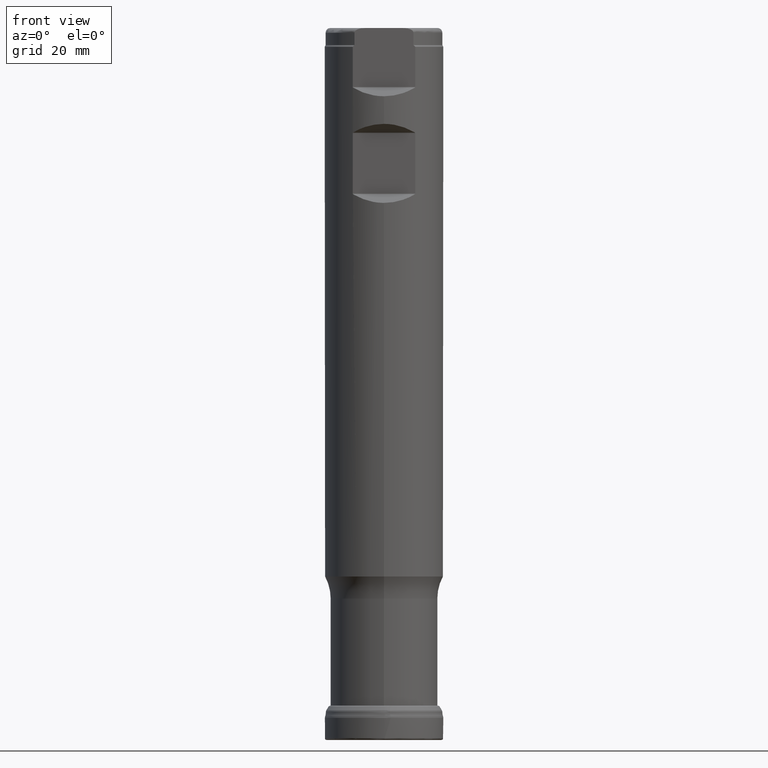
[diagram: clean part render]
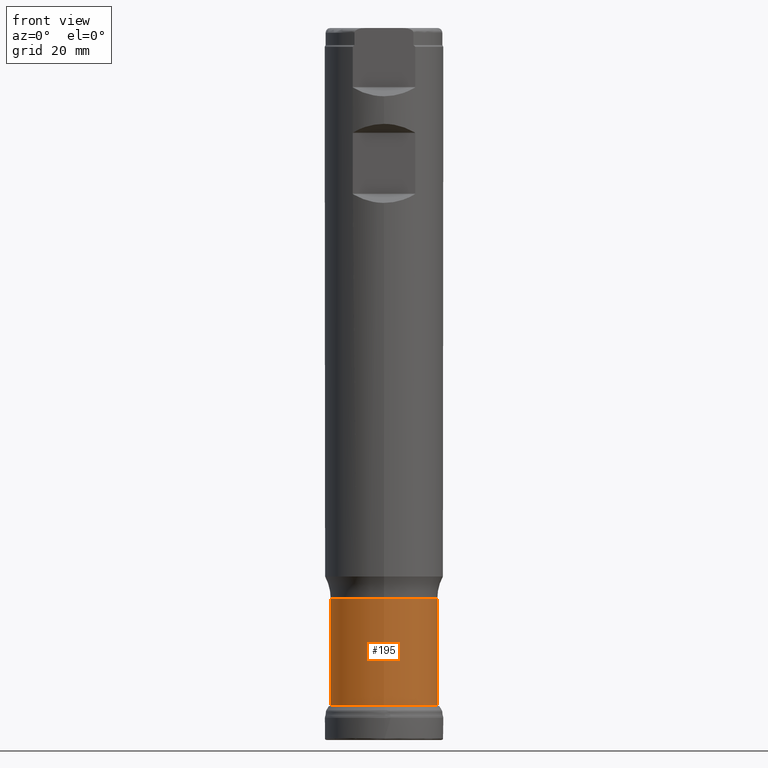
[diagram: same view with one face highlighted and labeled with its STEP entity id]
A machine part, front view. The second image highlights one B-rep face of the part: STEP entity #195.
In plain terms, the highlighted cylindrical surface (bore or boss wall) has radius 11.5 mm, axis along (0, 0, 1).
Its self-contained STEP definition (entity closure, byte-faithful):
#175=CYLINDRICAL_SURFACE('',#828,11.5);
#195=ADVANCED_FACE('',(#297,#298),#175,.T.);
#297=FACE_BOUND('',#378,.T.);
#298=FACE_BOUND('',#379,.T.);
#378=EDGE_LOOP('',(#469));
#379=EDGE_LOOP('',(#470));
#469=ORIENTED_EDGE('',*,*,#665,.T.);
#470=ORIENTED_EDGE('',*,*,#666,.T.);
#605=VERTEX_POINT('',#1312);
#606=VERTEX_POINT('',#1314);
#665=EDGE_CURVE('',#605,#605,#732,.T.);
#666=EDGE_CURVE('',#606,#606,#733,.T.);
#732=CIRCLE('',#826,11.5);
#733=CIRCLE('',#827,11.5);
#826=AXIS2_PLACEMENT_3D('',#1311,#919,#920);
#827=AXIS2_PLACEMENT_3D('',#1313,#921,#922);
#828=AXIS2_PLACEMENT_3D('',#1315,#923,#924);
#919=DIRECTION('',(0.,1.17145536458252E-15,1.));
#920=DIRECTION('',(0.,-1.,1.20676415720126E-15));
#921=DIRECTION('',(0.,-1.17145536458252E-15,-1.));
#922=DIRECTION('',(0.,-1.,1.20676415720126E-15));
#923=DIRECTION('',(0.,1.17145536458252E-15,1.));
#924=DIRECTION('',(0.,-1.,1.17145536458252E-15));
#1311=CARTESIAN_POINT('',(0.,7.6668840021104E-15,6.54475128452093));
#1312=CARTESIAN_POINT('',(0.,-11.5,6.54475128452094));
#1313=CARTESIAN_POINT('',(0.,3.54382388113264E-14,30.2514631651848));
#1314=CARTESIAN_POINT('',(0.,-11.5,30.2514631651848));
#1315=CARTESIAN_POINT('',(0.,0.,0.));